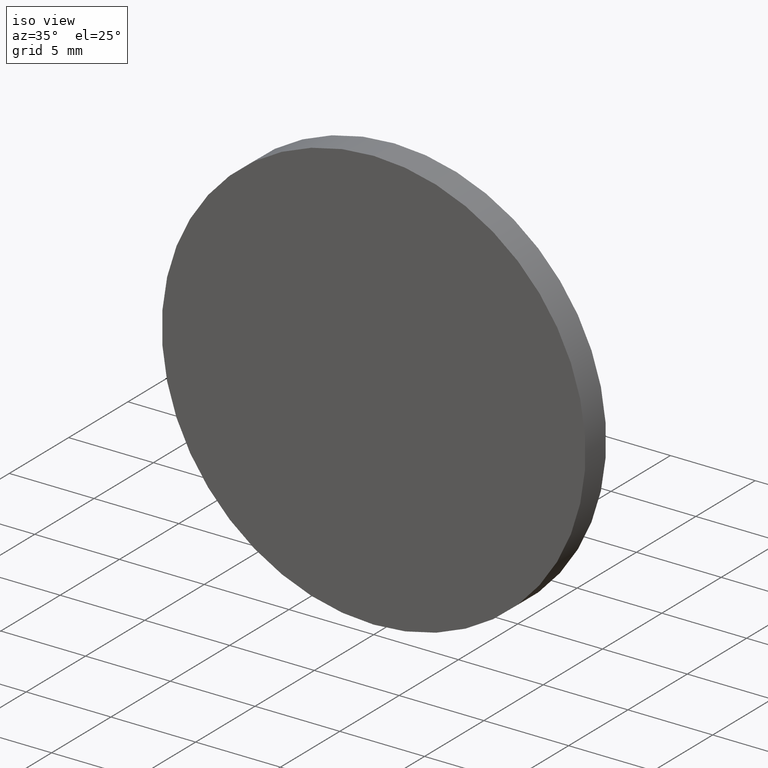
[diagram: clean part render]
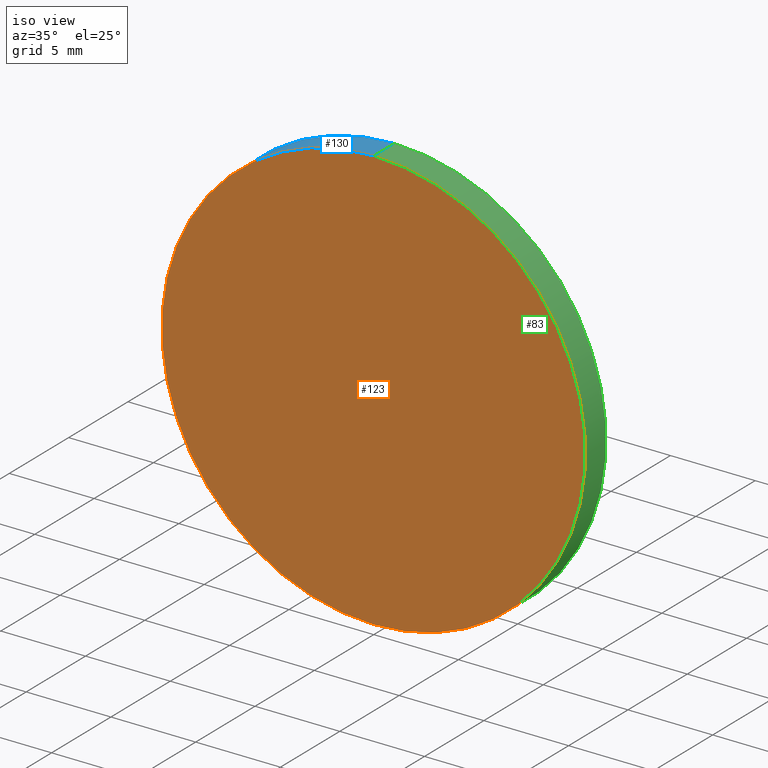
[diagram: same view with three faces highlighted in distinct colors, each labeled with its STEP entity id]
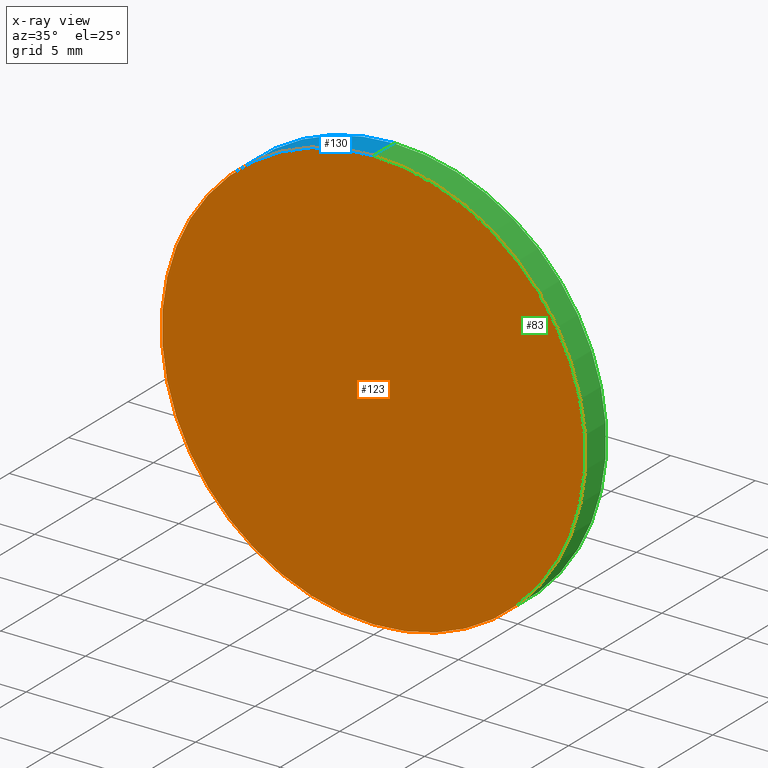
[diagram: x-ray of the same camera — body ghosted, the three highlighted faces saturated]
A machine part, iso view with three faces highlighted in distinct colors.
The next image is the same camera in x-ray (body ghosted, the three faces saturated) — at least one of them is partly hidden behind the body in this view.
Their STEP definitions:

[orange] entity #123 — the highlighted planar face has unit normal (0, 1, 0).
#8 = CARTESIAN_POINT ( 'NONE',  ( 0.0000000000000000000, 0.0000000000000000000, 0.0000000000000000000 ) ) ;
#9 = ORIENTED_EDGE ( 'NONE', *, *, #114, .F. ) ;
#22 = CARTESIAN_POINT ( 'NONE',  ( 0.0000000000000000000, 0.0000000000000000000, 0.0000000000000000000 ) ) ;
#23 = DIRECTION ( 'NONE',  ( 0.0000000000000000000, -0.0000000000000000000, 1.000000000000000000 ) ) ;
#34 = PLANE ( 'NONE',  #110 ) ;
#39 = VERTEX_POINT ( 'NONE', #101 ) ;
#41 = CARTESIAN_POINT ( 'NONE',  ( 1.530808498934191500E-015, 0.0000000000000000000, 12.50000000000000000 ) ) ;
#47 = DIRECTION ( 'NONE',  ( 0.0000000000000000000, 1.000000000000000000, 0.0000000000000000000 ) ) ;
#58 = DIRECTION ( 'NONE',  ( 0.0000000000000000000, 1.000000000000000000, 0.0000000000000000000 ) ) ;
#60 = CIRCLE ( 'NONE', #88, 12.50000000000000000 ) ;
#63 = EDGE_LOOP ( 'NONE', ( #128, #9 ) ) ;
#69 = FACE_OUTER_BOUND ( 'NONE', #63, .T. ) ;
#70 = CARTESIAN_POINT ( 'NONE',  ( 0.0000000000000000000, 0.0000000000000000000, 0.0000000000000000000 ) ) ;
#72 = VERTEX_POINT ( 'NONE', #41 ) ;
#88 = AXIS2_PLACEMENT_3D ( 'NONE', #8, #58, #135 ) ;
#93 = CIRCLE ( 'NONE', #102, 12.50000000000000000 ) ;
#96 = DIRECTION ( 'NONE',  ( 0.0000000000000000000, 1.000000000000000000, 0.0000000000000000000 ) ) ;
#101 = CARTESIAN_POINT ( 'NONE',  ( 0.0000000000000000000, 0.0000000000000000000, -12.50000000000000000 ) ) ;
#102 = AXIS2_PLACEMENT_3D ( 'NONE', #22, #47, #133 ) ;
#110 = AXIS2_PLACEMENT_3D ( 'NONE', #70, #96, #23 ) ;
#114 = EDGE_CURVE ( 'NONE', #72, #39, #60, .T. ) ;
#123 = ADVANCED_FACE ( 'NONE', ( #69 ), #34, .F. ) ;
#128 = ORIENTED_EDGE ( 'NONE', *, *, #131, .F. ) ;
#131 = EDGE_CURVE ( 'NONE', #39, #72, #93, .T. ) ;
#133 = DIRECTION ( 'NONE',  ( 0.0000000000000000000, 0.0000000000000000000, 1.000000000000000000 ) ) ;
#135 = DIRECTION ( 'NONE',  ( 0.0000000000000000000, 0.0000000000000000000, 1.000000000000000000 ) ) ;

[blue] entity #130 — the highlighted cylindrical surface (partial cylindrical patch) has radius 12.5 mm, axis along (-0, -1, -0).
#1 = EDGE_CURVE ( 'NONE', #74, #72, #104, .T. ) ;
#5 = AXIS2_PLACEMENT_3D ( 'NONE', #134, #108, #56 ) ;
#13 = DIRECTION ( 'NONE',  ( 0.0000000000000000000, 1.000000000000000000, 0.0000000000000000000 ) ) ;
#15 = EDGE_LOOP ( 'NONE', ( #81, #25, #32, #132 ) ) ;
#22 = CARTESIAN_POINT ( 'NONE',  ( 0.0000000000000000000, 0.0000000000000000000, 0.0000000000000000000 ) ) ;
#25 = ORIENTED_EDGE ( 'NONE', *, *, #97, .F. ) ;
#27 = CARTESIAN_POINT ( 'NONE',  ( 0.0000000000000000000, 1.740000000000000000, 0.0000000000000000000 ) ) ;
#32 = ORIENTED_EDGE ( 'NONE', *, *, #103, .T. ) ;
#36 = CIRCLE ( 'NONE', #44, 12.50000000000000000 ) ;
#37 = DIRECTION ( 'NONE',  ( -0.0000000000000000000, -1.000000000000000000, -0.0000000000000000000 ) ) ;
#39 = VERTEX_POINT ( 'NONE', #101 ) ;
#41 = CARTESIAN_POINT ( 'NONE',  ( 1.530808498934191500E-015, 0.0000000000000000000, 12.50000000000000000 ) ) ;
#44 = AXIS2_PLACEMENT_3D ( 'NONE', #27, #13, #92 ) ;
#47 = DIRECTION ( 'NONE',  ( 0.0000000000000000000, 1.000000000000000000, 0.0000000000000000000 ) ) ;
#51 = CARTESIAN_POINT ( 'NONE',  ( 0.0000000000000000000, 1.740000000000000000, -12.50000000000000000 ) ) ;
#54 = VERTEX_POINT ( 'NONE', #51 ) ;
#56 = DIRECTION ( 'NONE',  ( 0.0000000000000000000, 0.0000000000000000000, -1.000000000000000000 ) ) ;
#64 = VECTOR ( 'NONE', #100, 1000.000000000000000 ) ;
#72 = VERTEX_POINT ( 'NONE', #41 ) ;
#74 = VERTEX_POINT ( 'NONE', #106 ) ;
#79 = CARTESIAN_POINT ( 'NONE',  ( 0.0000000000000000000, 1.740000000000000000, -12.50000000000000000 ) ) ;
#81 = ORIENTED_EDGE ( 'NONE', *, *, #1, .F. ) ;
#92 = DIRECTION ( 'NONE',  ( 0.0000000000000000000, 0.0000000000000000000, 1.000000000000000000 ) ) ;
#93 = CIRCLE ( 'NONE', #102, 12.50000000000000000 ) ;
#95 = VECTOR ( 'NONE', #37, 1000.000000000000000 ) ;
#97 = EDGE_CURVE ( 'NONE', #54, #74, #36, .T. ) ;
#100 = DIRECTION ( 'NONE',  ( -0.0000000000000000000, -1.000000000000000000, -0.0000000000000000000 ) ) ;
#101 = CARTESIAN_POINT ( 'NONE',  ( 0.0000000000000000000, 0.0000000000000000000, -12.50000000000000000 ) ) ;
#102 = AXIS2_PLACEMENT_3D ( 'NONE', #22, #47, #133 ) ;
#103 = EDGE_CURVE ( 'NONE', #54, #39, #117, .T. ) ;
#104 = LINE ( 'NONE', #112, #95 ) ;
#106 = CARTESIAN_POINT ( 'NONE',  ( 1.530808498934191500E-015, 1.740000000000000000, 12.50000000000000000 ) ) ;
#108 = DIRECTION ( 'NONE',  ( -0.0000000000000000000, -1.000000000000000000, -0.0000000000000000000 ) ) ;
#112 = CARTESIAN_POINT ( 'NONE',  ( 1.530808498934191500E-015, 1.740000000000000000, 12.50000000000000000 ) ) ;
#115 = CYLINDRICAL_SURFACE ( 'NONE', #5, 12.50000000000000000 ) ;
#117 = LINE ( 'NONE', #79, #64 ) ;
#122 = FACE_OUTER_BOUND ( 'NONE', #15, .T. ) ;
#130 = ADVANCED_FACE ( 'NONE', ( #122 ), #115, .T. ) ;
#131 = EDGE_CURVE ( 'NONE', #39, #72, #93, .T. ) ;
#132 = ORIENTED_EDGE ( 'NONE', *, *, #131, .T. ) ;
#133 = DIRECTION ( 'NONE',  ( 0.0000000000000000000, 0.0000000000000000000, 1.000000000000000000 ) ) ;
#134 = CARTESIAN_POINT ( 'NONE',  ( 0.0000000000000000000, 1.740000000000000000, 0.0000000000000000000 ) ) ;

[green] entity #83 — the highlighted cylindrical surface (partial cylindrical patch) has radius 12.5 mm, axis along (-0, -1, -0).
#1 = EDGE_CURVE ( 'NONE', #74, #72, #104, .T. ) ;
#4 = FACE_OUTER_BOUND ( 'NONE', #48, .T. ) ;
#8 = CARTESIAN_POINT ( 'NONE',  ( 0.0000000000000000000, 0.0000000000000000000, 0.0000000000000000000 ) ) ;
#18 = CIRCLE ( 'NONE', #94, 12.50000000000000000 ) ;
#31 = DIRECTION ( 'NONE',  ( 0.0000000000000000000, 0.0000000000000000000, 1.000000000000000000 ) ) ;
#37 = DIRECTION ( 'NONE',  ( -0.0000000000000000000, -1.000000000000000000, -0.0000000000000000000 ) ) ;
#38 = CARTESIAN_POINT ( 'NONE',  ( 0.0000000000000000000, 1.740000000000000000, 0.0000000000000000000 ) ) ;
#39 = VERTEX_POINT ( 'NONE', #101 ) ;
#41 = CARTESIAN_POINT ( 'NONE',  ( 1.530808498934191500E-015, 0.0000000000000000000, 12.50000000000000000 ) ) ;
#45 = ORIENTED_EDGE ( 'NONE', *, *, #114, .T. ) ;
#48 = EDGE_LOOP ( 'NONE', ( #111, #84, #45, #52 ) ) ;
#50 = DIRECTION ( 'NONE',  ( 0.0000000000000000000, 0.0000000000000000000, -1.000000000000000000 ) ) ;
#51 = CARTESIAN_POINT ( 'NONE',  ( 0.0000000000000000000, 1.740000000000000000, -12.50000000000000000 ) ) ;
#52 = ORIENTED_EDGE ( 'NONE', *, *, #103, .F. ) ;
#54 = VERTEX_POINT ( 'NONE', #51 ) ;
#58 = DIRECTION ( 'NONE',  ( 0.0000000000000000000, 1.000000000000000000, 0.0000000000000000000 ) ) ;
#60 = CIRCLE ( 'NONE', #88, 12.50000000000000000 ) ;
#61 = CARTESIAN_POINT ( 'NONE',  ( 0.0000000000000000000, 1.740000000000000000, 0.0000000000000000000 ) ) ;
#64 = VECTOR ( 'NONE', #100, 1000.000000000000000 ) ;
#72 = VERTEX_POINT ( 'NONE', #41 ) ;
#74 = VERTEX_POINT ( 'NONE', #106 ) ;
#79 = CARTESIAN_POINT ( 'NONE',  ( 0.0000000000000000000, 1.740000000000000000, -12.50000000000000000 ) ) ;
#83 = ADVANCED_FACE ( 'NONE', ( #4 ), #90, .T. ) ;
#84 = ORIENTED_EDGE ( 'NONE', *, *, #1, .T. ) ;
#88 = AXIS2_PLACEMENT_3D ( 'NONE', #8, #58, #135 ) ;
#90 = CYLINDRICAL_SURFACE ( 'NONE', #136, 12.50000000000000000 ) ;
#94 = AXIS2_PLACEMENT_3D ( 'NONE', #38, #109, #31 ) ;
#95 = VECTOR ( 'NONE', #37, 1000.000000000000000 ) ;
#100 = DIRECTION ( 'NONE',  ( -0.0000000000000000000, -1.000000000000000000, -0.0000000000000000000 ) ) ;
#101 = CARTESIAN_POINT ( 'NONE',  ( 0.0000000000000000000, 0.0000000000000000000, -12.50000000000000000 ) ) ;
#103 = EDGE_CURVE ( 'NONE', #54, #39, #117, .T. ) ;
#104 = LINE ( 'NONE', #112, #95 ) ;
#106 = CARTESIAN_POINT ( 'NONE',  ( 1.530808498934191500E-015, 1.740000000000000000, 12.50000000000000000 ) ) ;
#109 = DIRECTION ( 'NONE',  ( 0.0000000000000000000, 1.000000000000000000, 0.0000000000000000000 ) ) ;
#111 = ORIENTED_EDGE ( 'NONE', *, *, #120, .F. ) ;
#112 = CARTESIAN_POINT ( 'NONE',  ( 1.530808498934191500E-015, 1.740000000000000000, 12.50000000000000000 ) ) ;
#114 = EDGE_CURVE ( 'NONE', #72, #39, #60, .T. ) ;
#117 = LINE ( 'NONE', #79, #64 ) ;
#120 = EDGE_CURVE ( 'NONE', #74, #54, #18, .T. ) ;
#125 = DIRECTION ( 'NONE',  ( -0.0000000000000000000, -1.000000000000000000, -0.0000000000000000000 ) ) ;
#135 = DIRECTION ( 'NONE',  ( 0.0000000000000000000, 0.0000000000000000000, 1.000000000000000000 ) ) ;
#136 = AXIS2_PLACEMENT_3D ( 'NONE', #61, #125, #50 ) ;